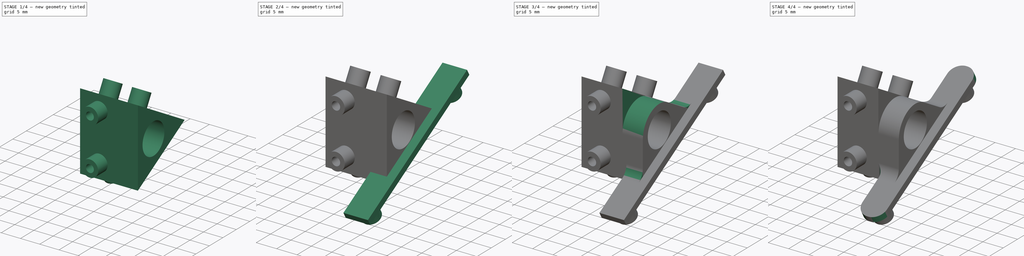
[diagram: build sequence overview — one tinted view per stage of 4, left to right]
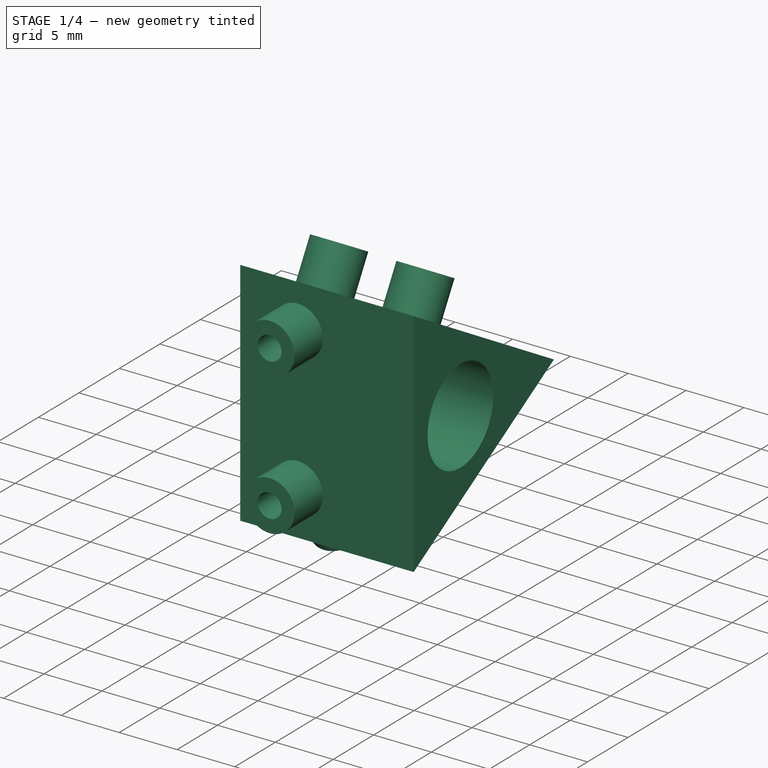
[diagram: stage 1 of 4 — iso view after this stage's code; geometry added in this stage tinted green]
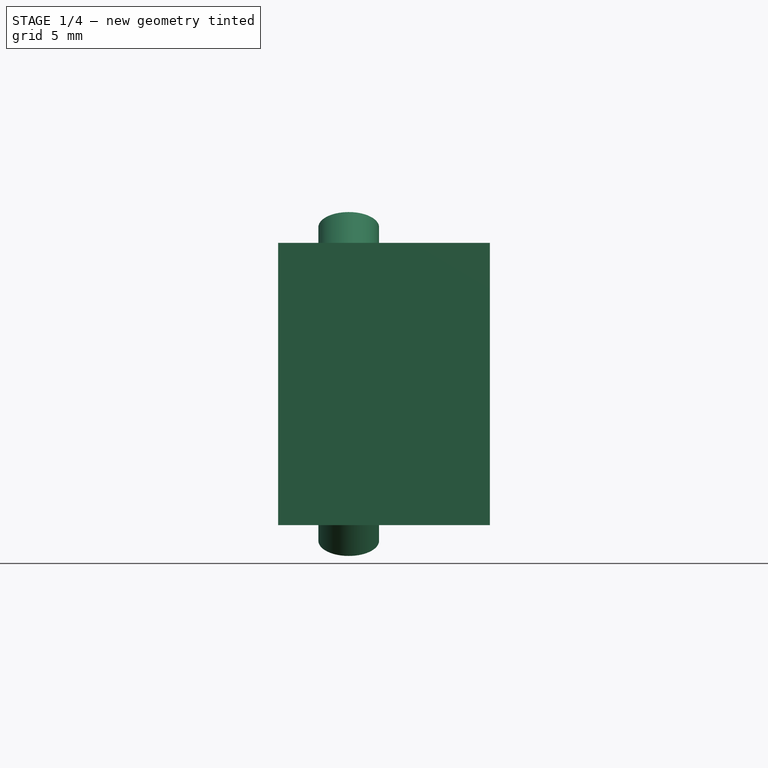
[diagram: stage 1 of 4 — front view after this stage's code; geometry added in this stage tinted green]
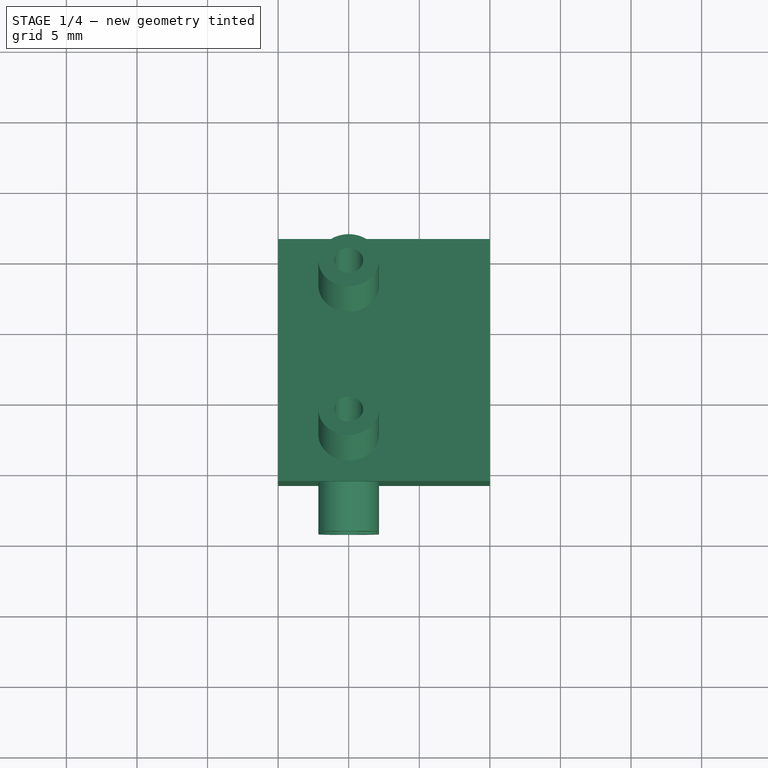
[diagram: stage 1 of 4 — top view after this stage's code; geometry added in this stage tinted green]
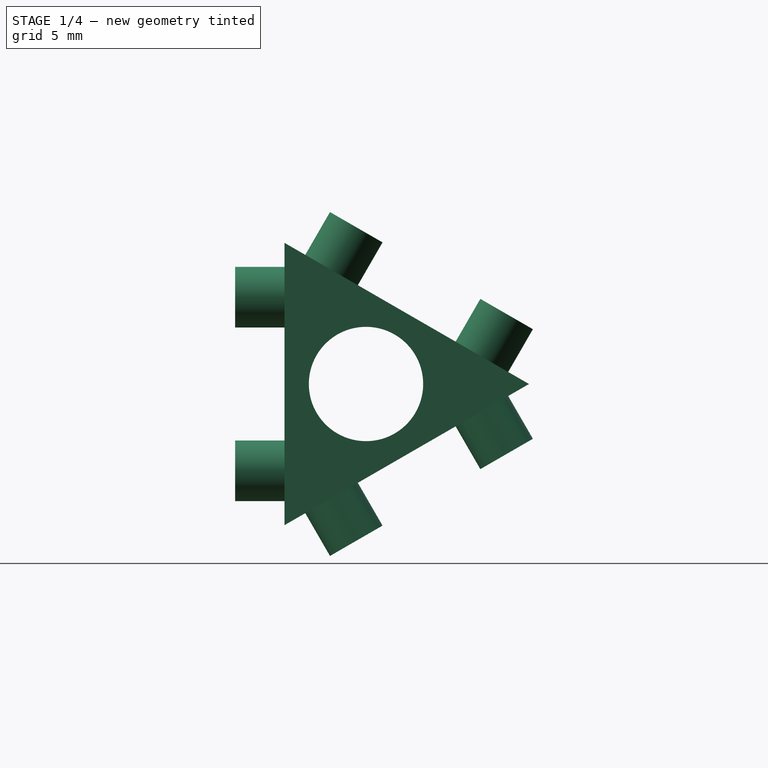
[diagram: stage 1 of 4 — right view after this stage's code; geometry added in this stage tinted green]
FCSTD DOCUMENT  (FreeCAD 0.18R16110 (Git))
Label: Sensor_holder
License: All rights reserved
LicenseURL: http://en.wikipedia.org/wiki/All_rights_reserved
objects: Sketcher::SketchObject×6, PartDesign::Pad×4, PartDesign::Fillet×4, PartDesign::Pocket×2, PartDesign::PolarPattern×1, PartDesign::Body×1
note: 24 computed .brp shape members not serialized (recipe doc carries the construction recipe); baked Part::Feature solids carry a one-line shape summary decoded from their .brp

FEATURE [Sketcher::SketchObject] Sketch
  MapMode = 5
  Placement = pos=(0,0,0) rot=(0.57735,0.57735,0.57735;2.0944rad)
  Support = -> [YZ_Plane]
  sketch-geometry (7):
    g0: LineSegment StartX=-5.7735 StartY=10 StartZ=0 EndX=-5.7735 EndY=-10 EndZ=0
    g1: LineSegment StartX=-5.7735 StartY=-10 StartZ=0 EndX=11.547 EndY=0 EndZ=0
    g2: LineSegment StartX=11.547 StartY=0 StartZ=0 EndX=-5.7735 EndY=10 EndZ=0
    g3: Circle CenterX=0 CenterY=0 CenterZ=0 NormalX=0 NormalY=0 NormalZ=1 AngleXU=0 Radius=4.05
    g4: LineSegment [constr] StartX=-5.7735 StartY=-10 StartZ=0 EndX=2.88675 EndY=5 EndZ=0
    g5: LineSegment [constr] StartX=11.547 StartY=0 StartZ=0 EndX=-5.7735 EndY=-5e-16 EndZ=0
    g6: LineSegment [constr] StartX=2.88675 StartY=-5 StartZ=0 EndX=-5.7735 EndY=10 EndZ=0
  constraints (20):
    c: Coincident(g1,g2)
    c: Coincident(g2,g0)
    c: Distance(g2) = 20
    c: Distance(g1) = 20
    c: Distance(g0) = 20
    c: PointOnObject(g1,g-1)
    c: Diameter(g3) = 8.1
    c: PointOnObject(g4,g2)
    c: PointOnObject(g5,g0)
    c: Perpendicular(g0,g5)
    c: Perpendicular(g2,g4)
    c: Coincident(g5,g1)
    c: Coincident(g6,g0)
    c: PointOnObject(g6,g1)
    c: Perpendicular(g1,g6)
    c: PointOnObject(g3,g6)
    c: PointOnObject(g3,g4)
    c: Coincident(g1,g4)
    c: Coincident(g0,g1)
    c: Coincident(g3,g-1)
FEATURE [PartDesign::Pad] Pad
  Length = 15
  Length2 = 100
  Placement = pos=(0,0,0) rot=(0.57735,0.57735,0.57735;2.0944rad)
  Profile = -> Sketch
  Type = 0
FEATURE [Sketcher::SketchObject] Sketch001
  MapMode = 5
  Placement = pos=(-2.5e-15,-5.7735,1.5e-15) rot=(-0.57735,-0.57735,0.57735;4.18879rad)
  Support = -> [Pad]
  sketch-geometry (5):
    g0: Circle CenterX=6.15 CenterY=5 CenterZ=0 NormalX=0 NormalY=0 NormalZ=1 AngleXU=0 Radius=1.025
    g1: Circle CenterX=-6.15 CenterY=5 CenterZ=0 NormalX=0 NormalY=0 NormalZ=1 AngleXU=0 Radius=1.025
    g2: Circle CenterX=6.15 CenterY=5 CenterZ=0 NormalX=0 NormalY=0 NormalZ=1 AngleXU=0 Radius=2.15
    g3: Circle CenterX=-6.15 CenterY=5 CenterZ=0 NormalX=0 NormalY=0 NormalZ=1 AngleXU=0 Radius=2.15
    g4: LineSegment [constr] StartX=0 StartY=10 StartZ=0 EndX=0 EndY=0 EndZ=0
  constraints (13):
    c: Coincident(g0,g2)
    c: Distance(g1,g0) = 12.3
    c: Diameter(g1) = 2.05
    c: Diameter(g0) = 2.05
    c: Diameter(g2) = 4.3
    c: Coincident(g3,g1)
    c: Diameter(g3) = 4.3
    c: Vertical(g4)
    c: Symmetric(g1,g0,g4)
    c: DistanceX(g4,g-1) = 0
    c: DistanceY(g4,g4) = 10
    c: PointOnObject(g4,g-1)
    c: DistanceY(g-1,g0) = 5
FEATURE [PartDesign::Pad] Pad001
  BaseFeature = -> Pad
  Length = 3.5
  Length2 = 100
  Placement = pos=(0,0,0) rot=(0.57735,0.57735,0.57735;2.0944rad)
  Profile = -> Sketch001
  Type = 0
FEATURE [PartDesign::PolarPattern] PolarPattern
  Angle = 240
  Axis = -> X_Axis
  BaseFeature = -> Pad001
  Occurrences = 3
  Originals = -> [Pad001]
  Placement = pos=(0,0,0) rot=(0.57735,0.57735,0.57735;2.0944rad)
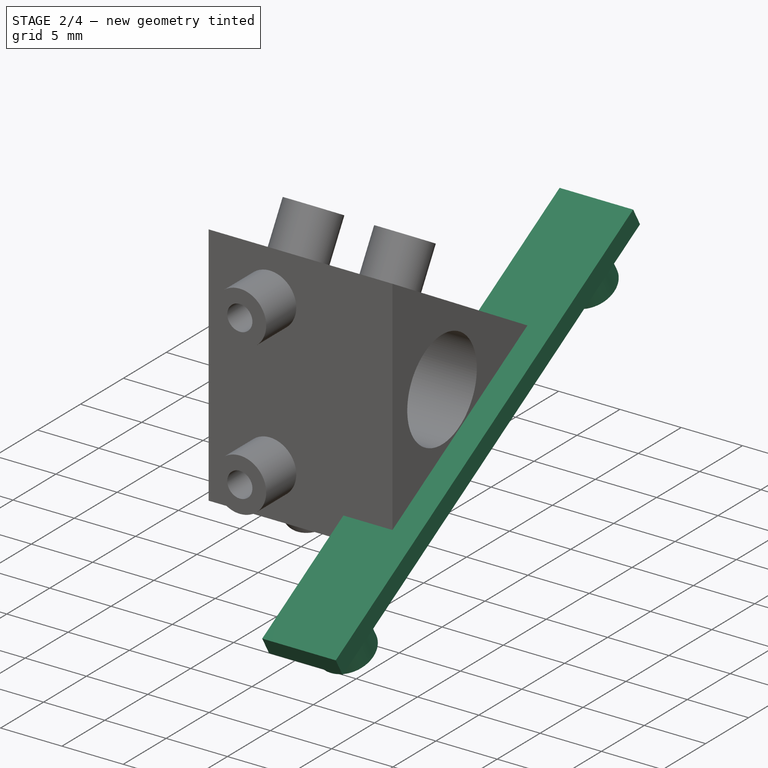
[diagram: stage 2 of 4 — iso view after this stage's code; geometry added in this stage tinted green]
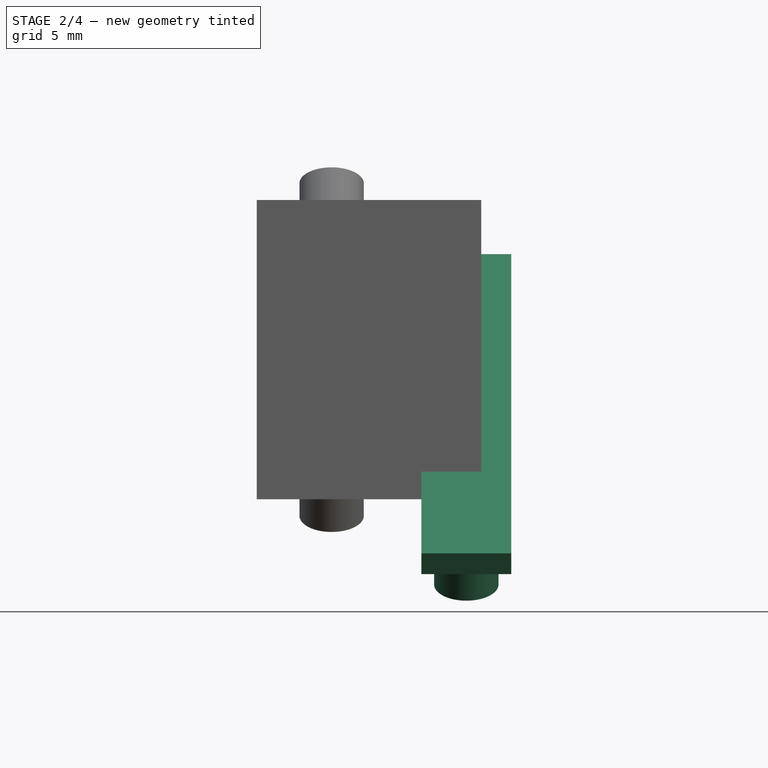
[diagram: stage 2 of 4 — front view after this stage's code; geometry added in this stage tinted green]
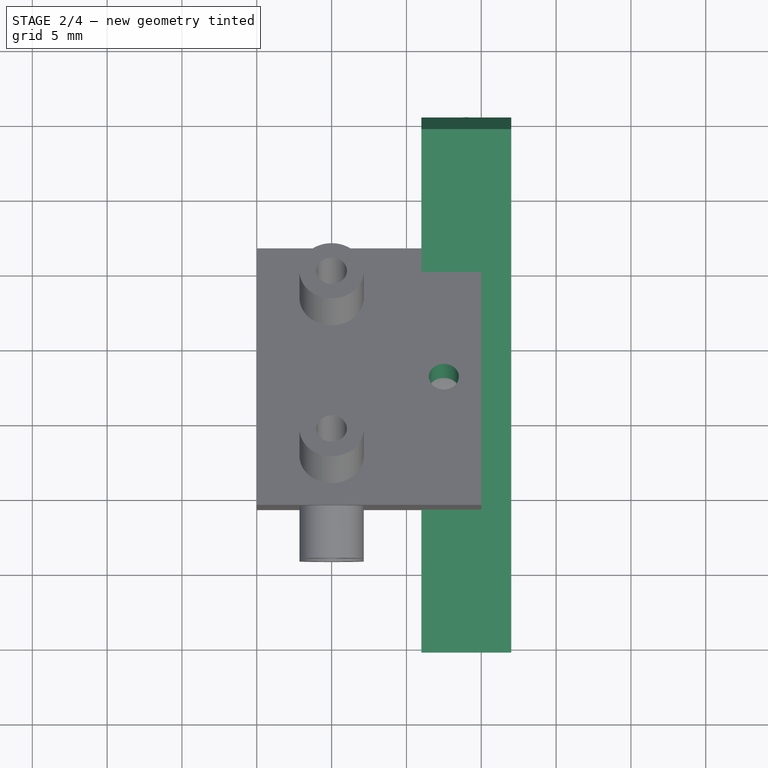
[diagram: stage 2 of 4 — top view after this stage's code; geometry added in this stage tinted green]
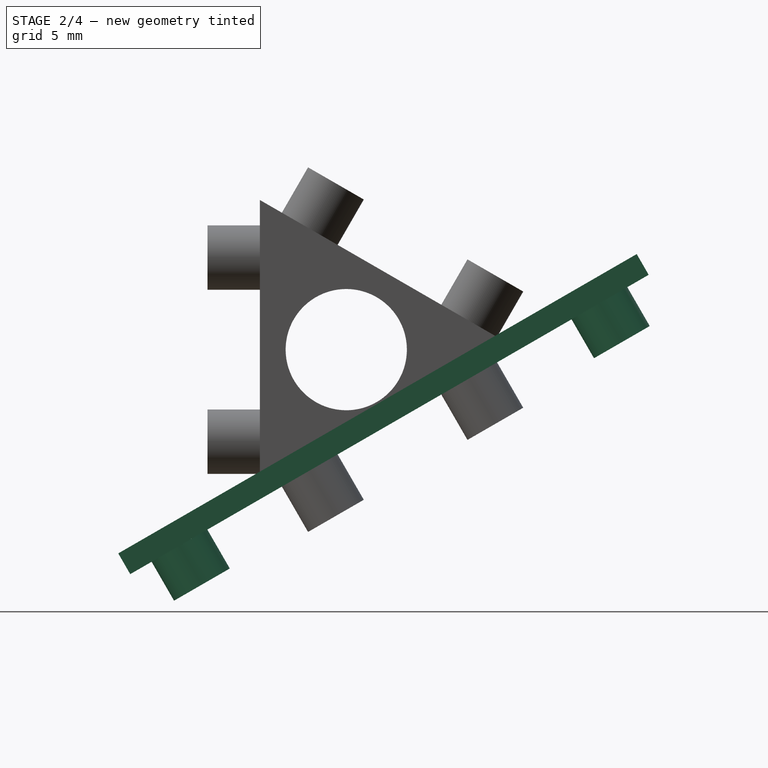
[diagram: stage 2 of 4 — right view after this stage's code; geometry added in this stage tinted green]
FEATURE [Sketcher::SketchObject] Sketch002
  MapMode = 5
  Placement = pos=(-1e-16,2.88675,5) rot=(-0.250563,-0.250563,-0.935113;1.63783rad)
  Support = -> [PolarPattern]
  sketch-geometry (1):
    g0: Circle CenterX=0 CenterY=12.5 CenterZ=0 NormalX=0 NormalY=0 NormalZ=1 AngleXU=0 Radius=1
  constraints (3):
    c: PointOnObject(g0,g-2)
    c: DistanceY(g-1,g0) = 12.5
    c: Diameter(g0) = 2
FEATURE [PartDesign::Pocket] Pocket
  BaseFeature = -> PolarPattern
  Length = 5
  Length2 = 100
  Placement = pos=(0,0,0) rot=(0.57735,0.57735,0.57735;2.0944rad)
  Profile = -> Sketch002
  Type = 0
FEATURE [Sketcher::SketchObject] Sketch003
  ExternalGeometry = -> [Pocket]
  MapMode = 5
  Placement = pos=(2.7e-15,2.88675,-5) rot=(0.694747,0.694747,0.186157;3.50969rad)
  Support = -> [Pocket]
  sketch-geometry (4):
    g0: LineSegment StartX=-20 StartY=17 StartZ=0 EndX=20 EndY=17 EndZ=0
    g1: LineSegment StartX=20 StartY=17 StartZ=0 EndX=20 EndY=11 EndZ=0
    g2: LineSegment StartX=20 StartY=11 StartZ=0 EndX=-20 EndY=11 EndZ=0
    g3: LineSegment StartX=-20 StartY=11 StartZ=0 EndX=-20 EndY=17 EndZ=0
  constraints (11):
    c: Coincident(g0,g1)
    c: Coincident(g1,g2)
    c: Coincident(g2,g3)
    c: Coincident(g3,g0)
    c: Horizontal(g2)
    c: Vertical(g1)
    c: Vertical(g3)
    c: Symmetric(g0,g0,g-2)
    c: Distance(g3) = 6
    c: Distance(g-3,g0) = 2
    c: DistanceX(g0,g0) = 40
FEATURE [PartDesign::Pad] Pad002
  BaseFeature = -> Pocket
  Length = 1.6
  Length2 = 100
  Placement = pos=(0,0,0) rot=(0.57735,0.57735,0.57735;2.0944rad)
  Profile = -> Sketch003
  Reversed = true
  Type = 0
FEATURE [Sketcher::SketchObject] Sketch004
  ExternalGeometry = -> [Pad002]
  MapMode = 5
  Placement = pos=(4.3e-15,2.88675,-5) rot=(0.694747,0.694747,0.186157;3.50969rad)
  Support = -> [Pad002]
  sketch-geometry (4):
    g0: Circle CenterX=-16.2 CenterY=14 CenterZ=0 NormalX=0 NormalY=0 NormalZ=1 AngleXU=0 Radius=1.025
    g1: Circle CenterX=-16.2 CenterY=14 CenterZ=0 NormalX=0 NormalY=0 NormalZ=1 AngleXU=0 Radius=2.15
    g2: Circle CenterX=16.2 CenterY=14 CenterZ=0 NormalX=0 NormalY=0 NormalZ=1 AngleXU=0 Radius=1.025
    g3: Circle CenterX=16.2 CenterY=14 CenterZ=0 NormalX=0 NormalY=0 NormalZ=1 AngleXU=0 Radius=2.15
  constraints (9):
    c: Coincident(g1,g0)
    c: Diameter(g0) = 2.05
    c: Diameter(g1) = 4.3
    c: Coincident(g3,g2)
    c: Diameter(g2) = 2.05
    c: Diameter(g3) = 4.3
    c: Symmetric(g0,g2,g-2)
    c: Distance(g0,g-3) = 3
    c: DistanceX(g0,g2) = 32.4
FEATURE [PartDesign::Pad] Pad003
  BaseFeature = -> Pad002
  Length = 3
  Length2 = 100
  Placement = pos=(0,0,0) rot=(0.57735,0.57735,0.57735;2.0944rad)
  Profile = -> Sketch004
  Type = 0
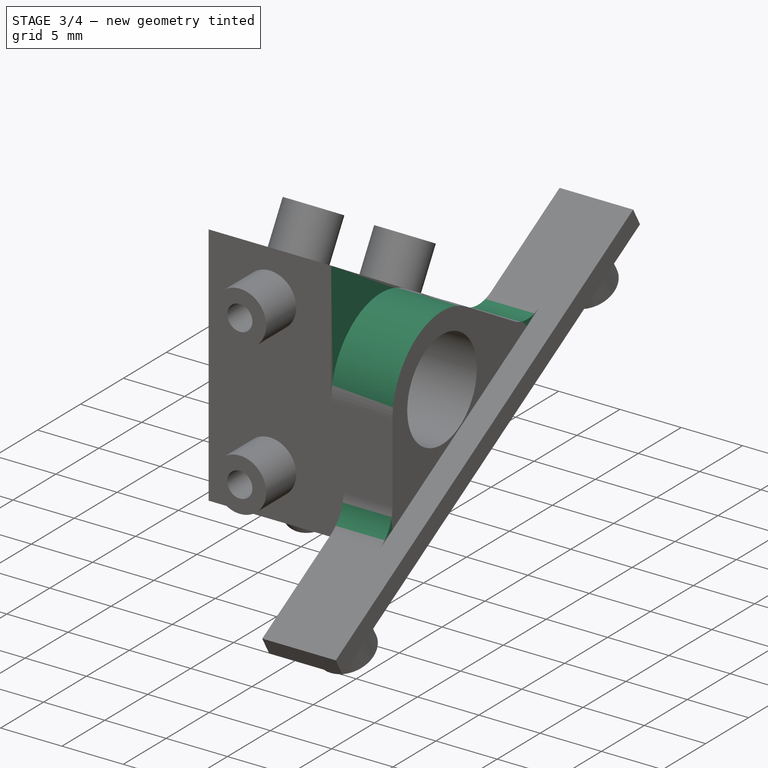
[diagram: stage 3 of 4 — iso view after this stage's code; geometry added in this stage tinted green]
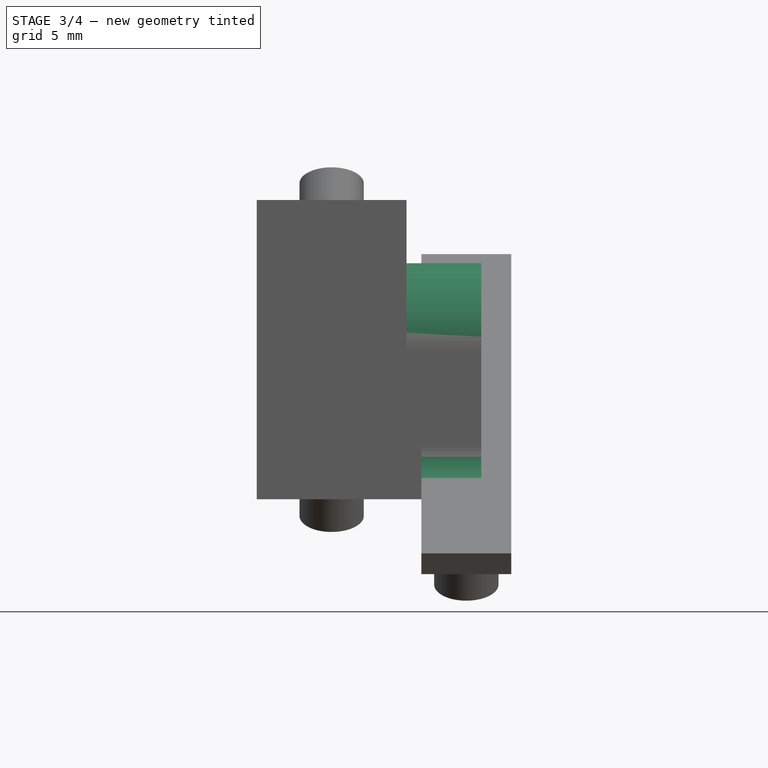
[diagram: stage 3 of 4 — front view after this stage's code; geometry added in this stage tinted green]
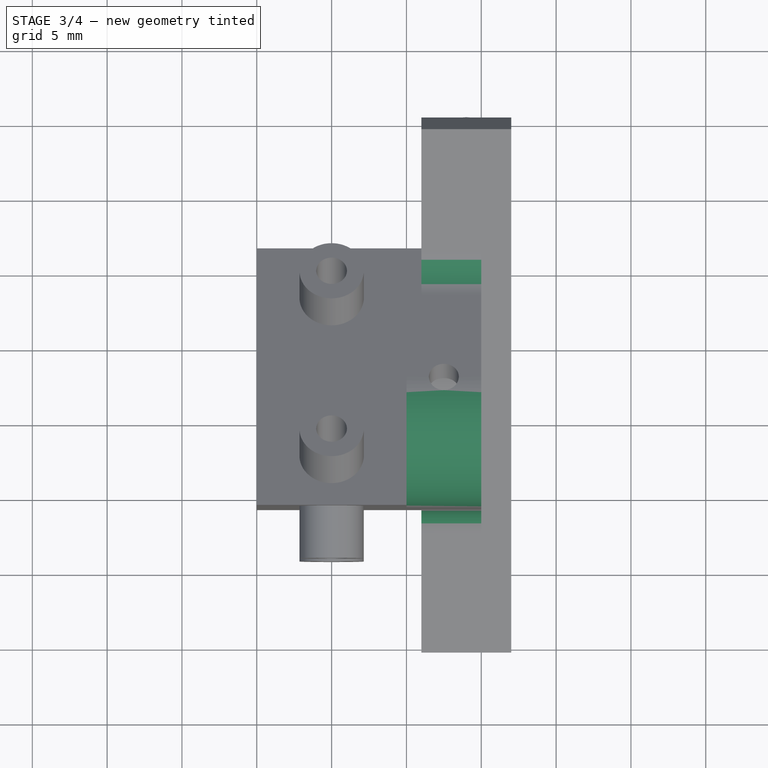
[diagram: stage 3 of 4 — top view after this stage's code; geometry added in this stage tinted green]
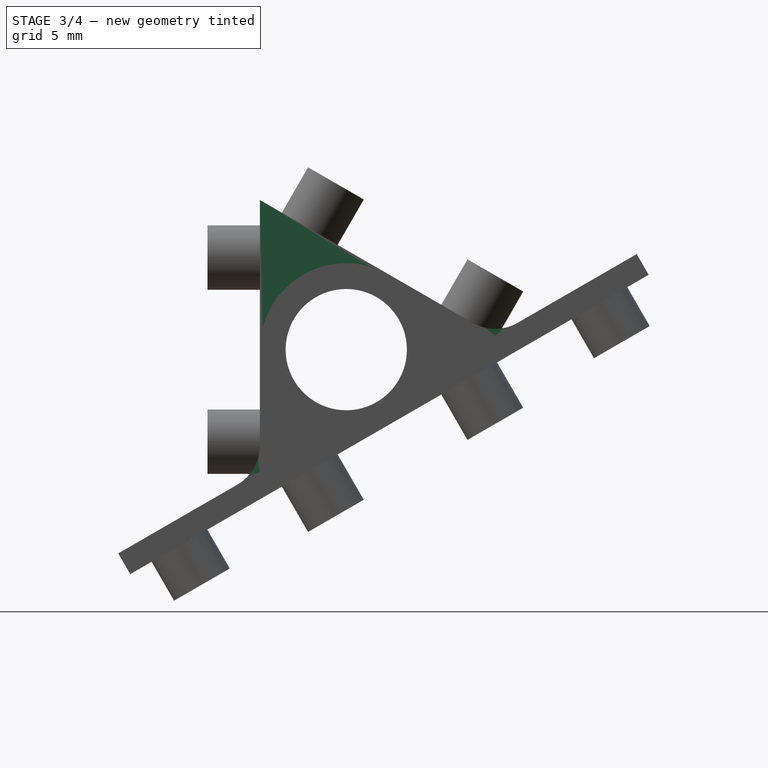
[diagram: stage 3 of 4 — right view after this stage's code; geometry added in this stage tinted green]
FEATURE [Sketcher::SketchObject] Sketch005
  ExternalGeometry = -> [Pad003]
  MapMode = 5
  Placement = pos=(15,-3.3e-15,6.6e-15) rot=(0.57735,0.57735,0.57735;2.0944rad)
  Support = -> [Pad003]
  sketch-geometry (3):
    g0: LineSegment StartX=-5.7735 StartY=0 StartZ=0 EndX=-5.7735 EndY=10 EndZ=0
    g1: LineSegment StartX=-5.7735 StartY=10 StartZ=0 EndX=2.88673 EndY=5.00001 EndZ=0
    g2: ArcOfCircle CenterX=0 CenterY=0 CenterZ=0 NormalX=0 NormalY=0 NormalZ=1 AngleXU=0 Radius=5.7735 StartAngle=1.0472 EndAngle=3.14159
  constraints (8):
    c: Coincident(g0,g1)
    c: Coincident(g-1,g2)
    c: Coincident(g2,g0)
    c: Coincident(g2,g1)
    c: Coincident(g0,g-4)
    c: PointOnObject(g0,g-4)
    c: PointOnObject(g0,g-1)
    c: PointOnObject(g1,g-3)
FEATURE [PartDesign::Pocket] Pocket001
  BaseFeature = -> Pad003
  Length = 5
  Length2 = 100
  Placement = pos=(0,0,0) rot=(0.57735,0.57735,0.57735;2.0944rad)
  Profile = -> Sketch005
  Type = 0
FEATURE [PartDesign::Fillet] Fillet
  Base = -> Pocket001 [Edge23,Edge4]
  BaseFeature = -> Pocket001
  Placement = pos=(0,0,0) rot=(0.57735,0.57735,0.57735;2.0944rad)
  Radius = 3
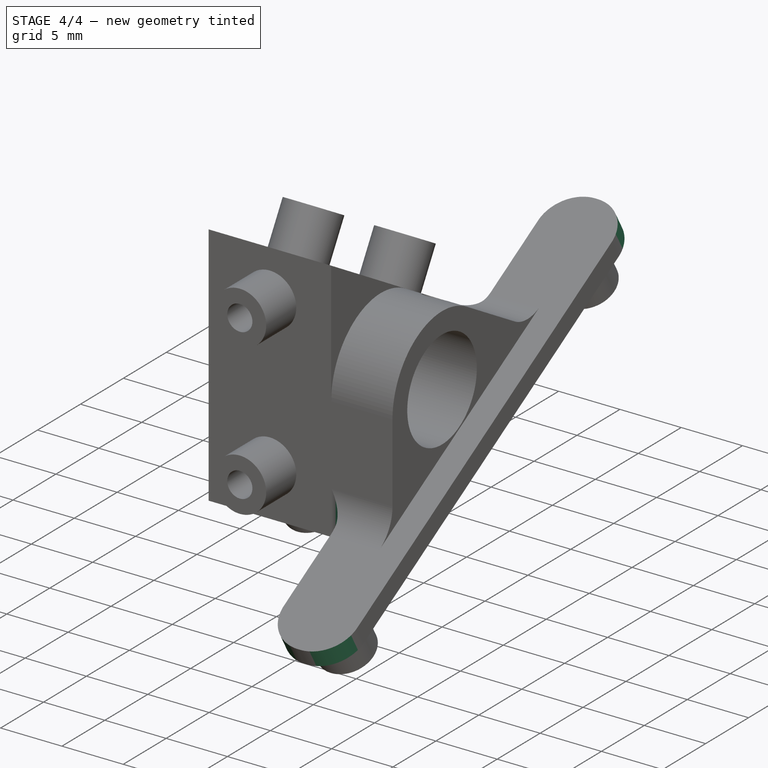
[diagram: stage 4 of 4 — iso view after this stage's code; geometry added in this stage tinted green]
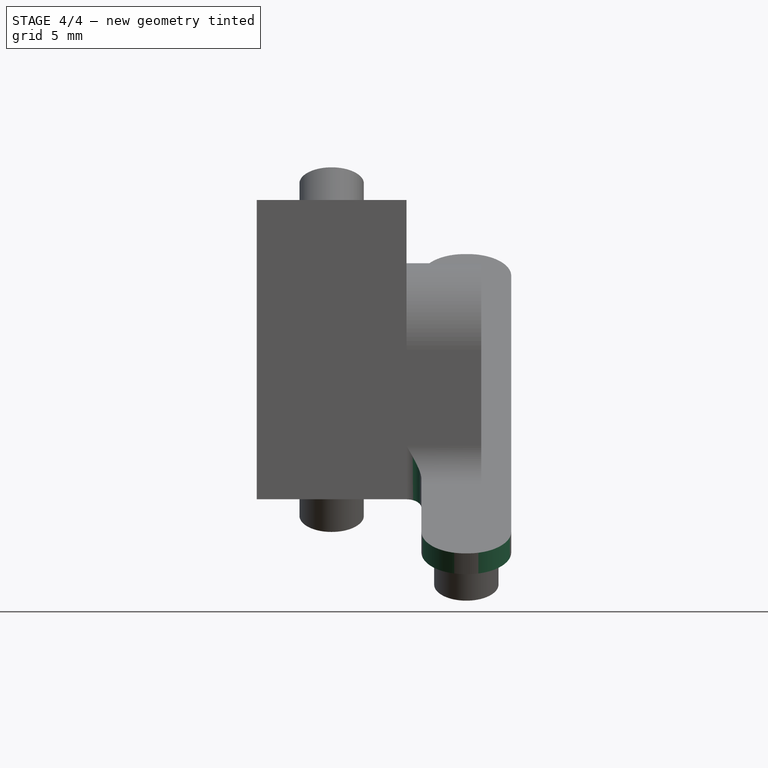
[diagram: stage 4 of 4 — front view after this stage's code; geometry added in this stage tinted green]
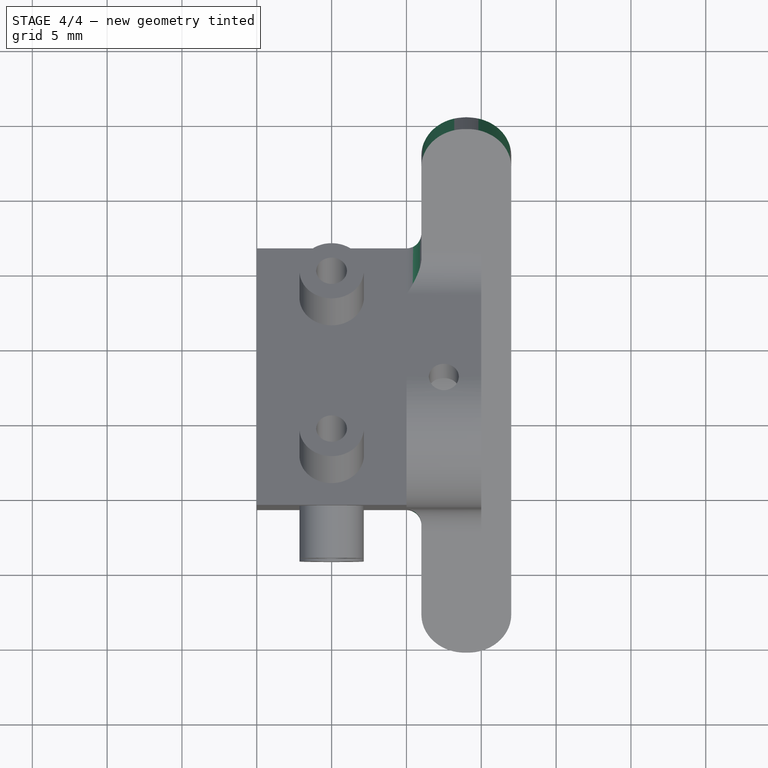
[diagram: stage 4 of 4 — top view after this stage's code; geometry added in this stage tinted green]
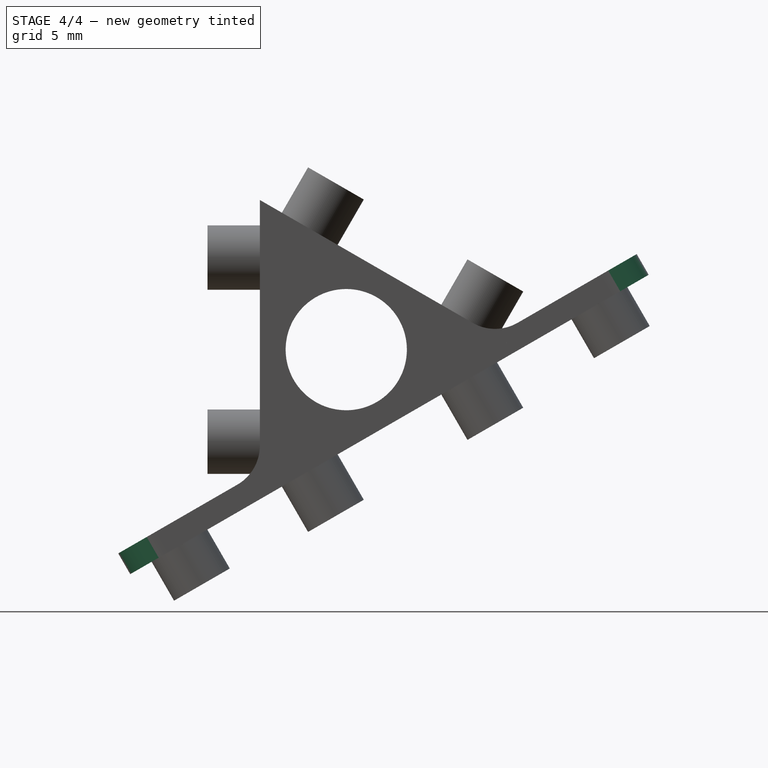
[diagram: stage 4 of 4 — right view after this stage's code; geometry added in this stage tinted green]
FEATURE [PartDesign::Fillet] Fillet001
  Base = -> Fillet [Edge57,Edge28,Edge78,Edge67]
  BaseFeature = -> Fillet
  Placement = pos=(0,0,0) rot=(0.57735,0.57735,0.57735;2.0944rad)
  Radius = 2.9
FEATURE [PartDesign::Fillet] Fillet002
  Base = -> Fillet001 [Edge6,Edge5]
  BaseFeature = -> Fillet001
  Placement = pos=(0,0,0) rot=(0.57735,0.57735,0.57735;2.0944rad)
  Radius = 1
FEATURE [PartDesign::Fillet] Fillet003
  Base = -> Fillet002 [Edge67,Edge68]
  BaseFeature = -> Fillet002
  Placement = pos=(0,0,0) rot=(0.57735,0.57735,0.57735;2.0944rad)
  Radius = 1
FEATURE [PartDesign::Body] Body
  Group = -> [Sketch,Pad,Sketch001,Pad001,PolarPattern,Sketch002,Pocket,Sketch003,Pad002,Sketch004,Pad003,Sketch005,Pocket001,Fillet,Fillet001,Fillet002,Fillet003]
  Origin = -> Origin
  Tip = -> Fillet003
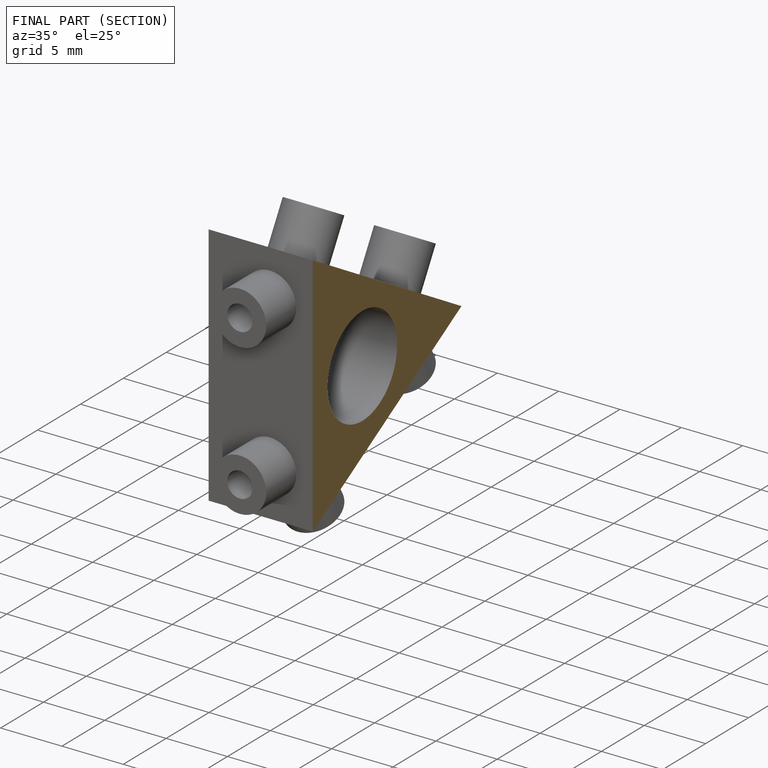
[diagram: finished part — half-section view (interior)]
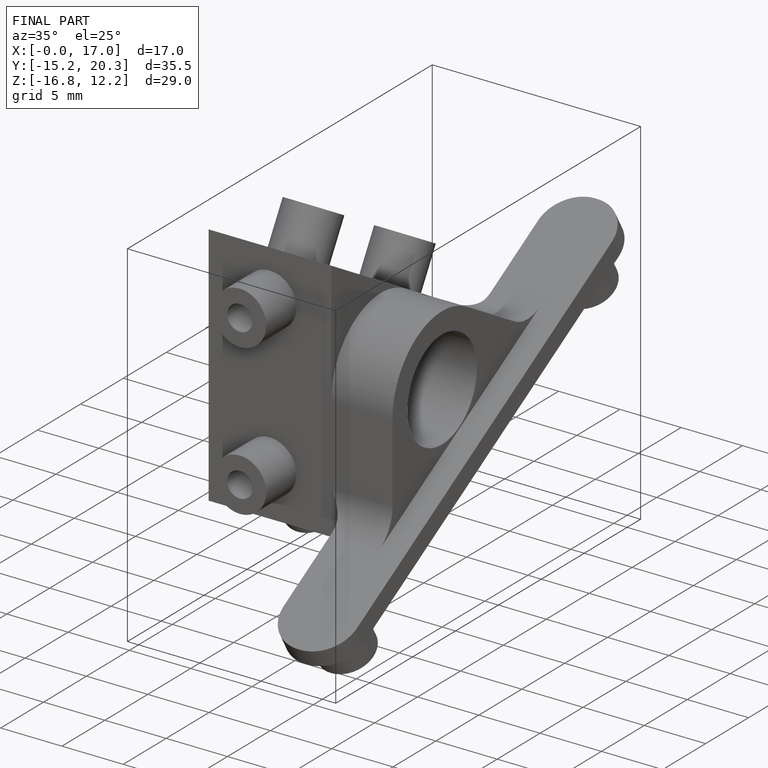
[diagram: finished part — iso view with bounding-box wireframe]
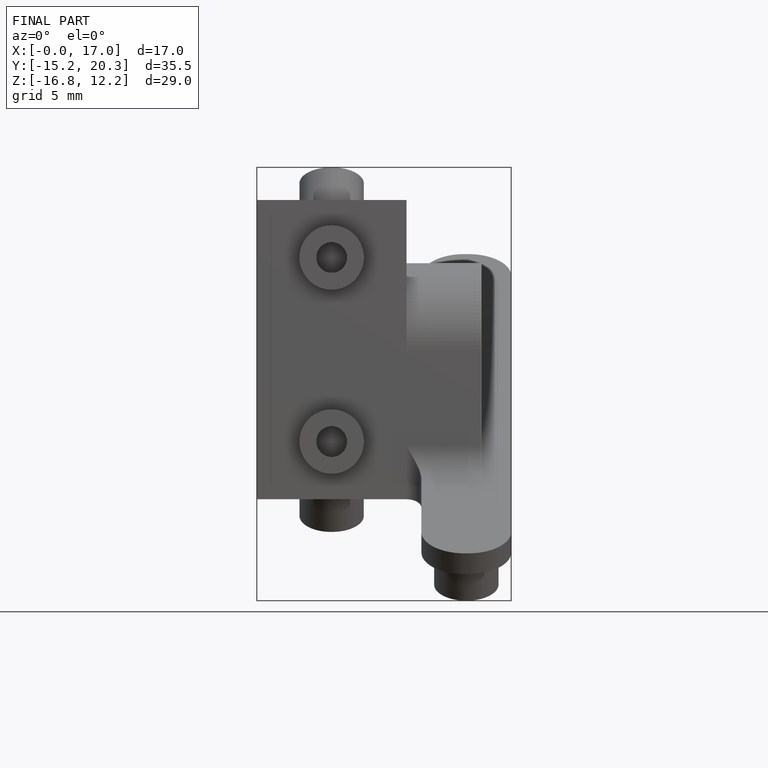
[diagram: finished part — front view with bounding-box wireframe]
